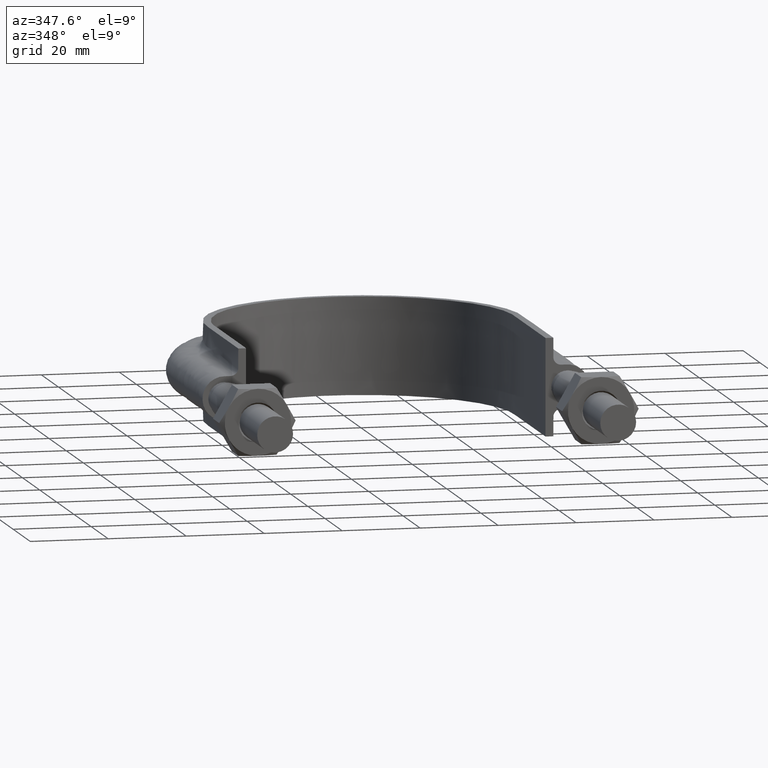
[diagram: clean part render]
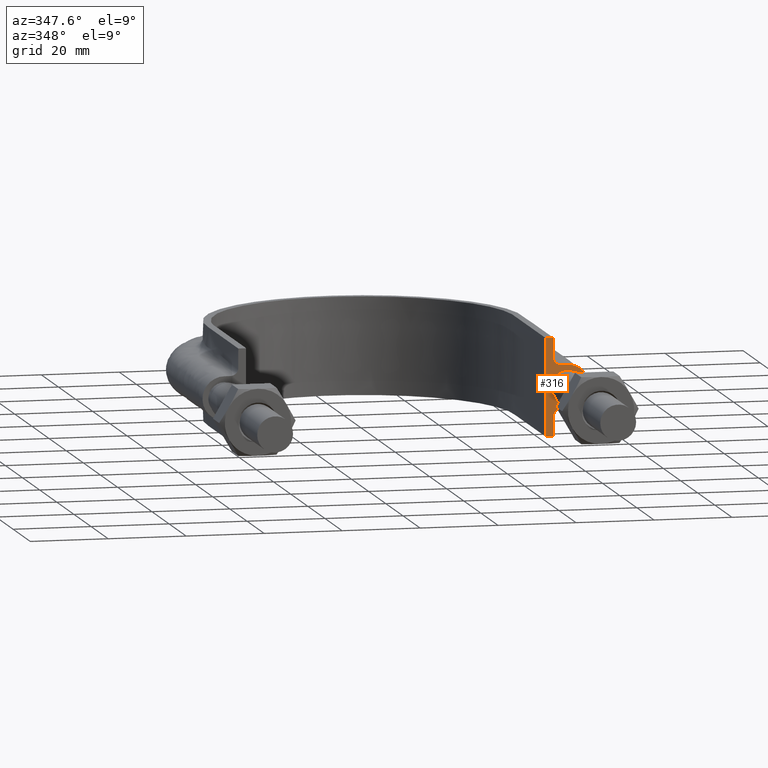
[diagram: same view with one face highlighted and labeled with its STEP entity id]
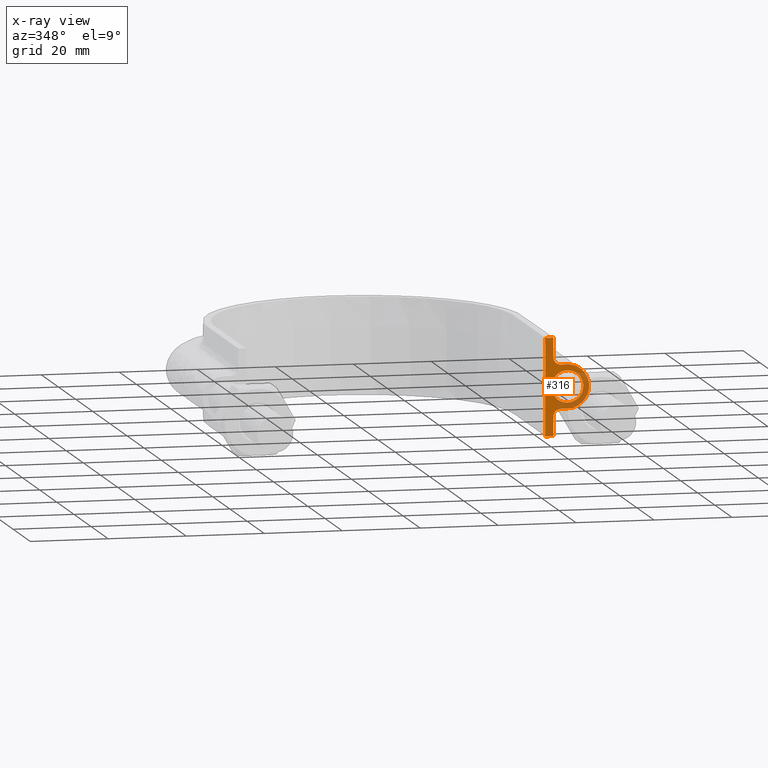
[diagram: x-ray of the same camera — body ghosted, the highlighted face saturated]
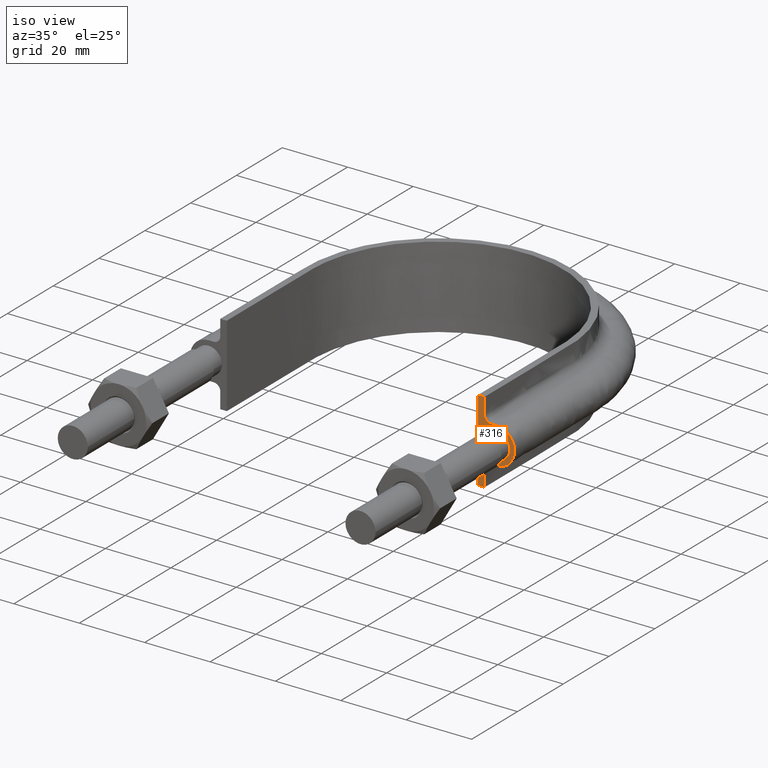
[diagram: same view with one face highlighted and labeled with its STEP entity id]
A machine part, auxiliary view. The second image highlights one B-rep face of the part: STEP entity #316.
The next image is the same camera in x-ray: the body ghosted, the highlighted face saturated — about 24% of this face is hidden behind the body in this view.
A second angle (iso view) of the same face is appended — the face is thin or edge-on in the first view.
In plain terms, the highlighted planar face has unit normal (0, 1, 0).
Its self-contained STEP definition (entity closure, byte-faithful):
#316 = ADVANCED_FACE( '', ( #397, #398 ), #399, .F. );
#397 = FACE_BOUND( '', #571, .T. );
#398 = FACE_OUTER_BOUND( '', #572, .T. );
#399 = PLANE( '', #573 );
#571 = EDGE_LOOP( '', ( #1575 ) );
#572 = EDGE_LOOP( '', ( #1576, #1577, #1578, #1579 ) );
#573 = AXIS2_PLACEMENT_3D( '', #1580, #1581, #1582 );
#1575 = ORIENTED_EDGE( '', *, *, #2116, .T. );
#1576 = ORIENTED_EDGE( '', *, *, #2117, .F. );
#1577 = ORIENTED_EDGE( '', *, *, #2118, .T. );
#1578 = ORIENTED_EDGE( '', *, *, #2119, .T. );
#1579 = ORIENTED_EDGE( '', *, *, #2120, .T. );
#1580 = CARTESIAN_POINT( '', ( -55.0000000000000, 59.3000000000000, 12.5000000000000 ) );
#1581 = DIRECTION( '', ( 1.22460635382238E-016, 1.00000000000000, 0.000000000000000 ) );
#1582 = DIRECTION( '', ( -1.00000000000000, 1.22460635382238E-016, 0.000000000000000 ) );
#2116 = EDGE_CURVE( '', #2273, #2273, #2274, .T. );
#2117 = EDGE_CURVE( '', #2275, #2276, #2277, .T. );
#2118 = EDGE_CURVE( '', #2275, #2278, #2279, .T. );
#2119 = EDGE_CURVE( '', #2278, #2280, #2281, .T. );
#2120 = EDGE_CURVE( '', #2280, #2276, #2282, .T. );
#2273 = VERTEX_POINT( '', #2565 );
#2274 = B_SPLINE_CURVE_WITH_KNOTS( '', 3, ( #2566, #2567, #2568, #2569, #2570, #2571, #2572, #2573, #2574, #2575 ), .UNSPECIFIED., .T., .F., ( 4, 1, 1, 1, 1, 1, 1, 4 ), ( 0.000000000000000, 0.00365634574703306, 0.00731269149406613, 0.0109690372410992, 0.0146253829881323, 0.0182817287351653, 0.0219380744821984, 0.0255944202292314 ), .UNSPECIFIED. );
#2275 = VERTEX_POINT( '', #2576 );
#2276 = VERTEX_POINT( '', #2577 );
#2277 = LINE( '', #2578, #2579 );
#2278 = VERTEX_POINT( '', #2580 );
#2279 = LINE( '', #2581, #2582 );
#2280 = VERTEX_POINT( '', #2583 );
#2281 = LINE( '', #2584, #2585 );
#2282 = B_SPLINE_CURVE_WITH_KNOTS( '', 3, ( #2586, #2587, #2588, #2589, #2590, #2591, #2592, #2593, #2594, #2595, #2596, #2597, #2598, #2599, #2600, #2601, #2602, #2603, #2604, #2605, #2606, #2607, #2608, #2609, #2610, #2611, #2612, #2613, #2614, #2615, #2616 ), .UNSPECIFIED., .F., .F., ( 4, 3, 1, 1, 1, 3, 3, 1, 1, 1, 3, 3, 1, 1, 1, 3, 4 ), ( 3.46944695195361E-018, 0.00229145817393288, 0.00458291634786575, 0.00687437452179862, 0.00916583269573149, 0.0114572908696644, 0.0137487490435972, 0.0160402072175301, 0.0183316653914630, 0.0206231235653959, 0.0229145817393287, 0.0252060399132616, 0.0274974980871945, 0.0297889562611273, 0.0320804144350602, 0.0343718726089931, 0.0366633307829260 ), .UNSPECIFIED. );
#2565 = CARTESIAN_POINT( '', ( 39.9000000000000, 59.3000000000000, 4.33680868994202E-016 ) );
#2566 = CARTESIAN_POINT( '', ( 39.9000000000000, 59.3000000000000, 4.33680868994202E-016 ) );
#2567 = CARTESIAN_POINT( '', ( 39.9000000000000, 59.3000000000000, 1.22184926194408 ) );
#2568 = CARTESIAN_POINT( '', ( 41.0768231851220, 59.3000000000000, 3.66554778583225 ) );
#2569 = CARTESIAN_POINT( '', ( 45.0432697263483, 59.3000000000000, 4.57086332538454 ) );
#2570 = CARTESIAN_POINT( '', ( 48.2241128848103, 59.3000000000000, 2.03422555230246 ) );
#2571 = CARTESIAN_POINT( '', ( 48.2241128848103, 59.3000000000000, -2.03422555230246 ) );
#2572 = CARTESIAN_POINT( '', ( 45.0432697263483, 59.3000000000000, -4.57086332538454 ) );
#2573 = CARTESIAN_POINT( '', ( 41.0768231851220, 59.3000000000000, -3.66554778583225 ) );
#2574 = CARTESIAN_POINT( '', ( 39.9000000000000, 59.3000000000000, -1.22184926194408 ) );
#2575 = CARTESIAN_POINT( '', ( 39.9000000000000, 59.3000000000000, 4.33680868994202E-016 ) );
#2576 = CARTESIAN_POINT( '', ( 38.4000000000000, 59.3000000000000, 12.5000000000000 ) );
#2577 = CARTESIAN_POINT( '', ( 40.4000000000000, 59.3000000000000, 12.5000000000000 ) );
#2578 = CARTESIAN_POINT( '', ( -55.0000000000000, 59.3000000000000, 12.5000000000000 ) );
#2579 = VECTOR( '', #3197, 1000.00000000000 );
#2580 = CARTESIAN_POINT( '', ( 38.4000000000000, 59.3000000000000, -12.5000000000000 ) );
#2581 = CARTESIAN_POINT( '', ( 38.4000000000000, 59.3000000000000, 12.5000100000909 ) );
#2582 = VECTOR( '', #3198, 1000.00000000000 );
#2583 = CARTESIAN_POINT( '', ( 40.4000000000000, 59.3000000000000, -12.5000000000000 ) );
#2584 = CARTESIAN_POINT( '', ( -55.0000000000000, 59.3000000000000, -12.5000000000000 ) );
#2585 = VECTOR( '', #3199, 1000.00000000000 );
#2586 = CARTESIAN_POINT( '', ( 40.4000000000000, 59.3000000000000, -12.5000000000000 ) );
#2587 = CARTESIAN_POINT( '', ( 40.4000000000000, 59.3000000000000, -10.8666666666667 ) );
#2588 = CARTESIAN_POINT( '', ( 40.4000000000000, 59.3000000000000, -9.23333333333333 ) );
#2589 = CARTESIAN_POINT( '', ( 40.4000000000000, 59.3000000000000, -7.60000000000000 ) );
#2590 = CARTESIAN_POINT( '', ( 40.4000000000000, 59.3000000000000, -7.33823584172333 ) );
#2591 = CARTESIAN_POINT( '', ( 40.5041362568359, 59.3000000000000, -6.81470752517001 ) );
#2592 = CARTESIAN_POINT( '', ( 40.9489687109389, 59.3000000000000, -6.14896871093887 ) );
#2593 = CARTESIAN_POINT( '', ( 41.6147075251700, 59.3000000000000, -5.70413625683591 ) );
#2594 = CARTESIAN_POINT( '', ( 42.1382358417233, 59.3000000000000, -5.60000000000000 ) );
#2595 = CARTESIAN_POINT( '', ( 42.4000000000000, 59.3000000000000, -5.60000000000000 ) );
#2596 = CARTESIAN_POINT( '', ( 42.9333333333333, 59.3000000000000, -5.60000000000000 ) );
#2597 = CARTESIAN_POINT( '', ( 43.4666666666667, 59.3000000000000, -5.60000000000000 ) );
#2598 = CARTESIAN_POINT( '', ( 44.0000000000000, 59.3000000000000, -5.60000000000000 ) );
#2599 = CARTESIAN_POINT( '', ( 45.4627416997970, 59.3000000000000, -5.60000000000000 ) );
#2600 = CARTESIAN_POINT( '', ( 48.3882250993909, 59.3000000000000, -4.38822509939085 ) );
#2601 = CARTESIAN_POINT( '', ( 50.2058874503046, 59.3000000000000, 2.90303803946411E-015 ) );
#2602 = CARTESIAN_POINT( '', ( 48.3882250993909, 59.3000000000000, 4.38822509939086 ) );
#2603 = CARTESIAN_POINT( '', ( 45.4627416997970, 59.3000000000000, 5.60000000000000 ) );
#2604 = CARTESIAN_POINT( '', ( 44.0000000000000, 59.3000000000000, 5.60000000000000 ) );
#2605 = CARTESIAN_POINT( '', ( 43.4666666666667, 59.3000000000000, 5.60000000000000 ) );
#2606 = CARTESIAN_POINT( '', ( 42.9333333333333, 59.3000000000000, 5.60000000000000 ) );
#2607 = CARTESIAN_POINT( '', ( 42.4000000000000, 59.3000000000000, 5.59999999999998 ) );
#2608 = CARTESIAN_POINT( '', ( 42.1382358417233, 59.3000000000000, 5.59999999999998 ) );
#2609 = CARTESIAN_POINT( '', ( 41.6147075251700, 59.3000000000000, 5.70413625683589 ) );
#2610 = CARTESIAN_POINT( '', ( 40.9489687109389, 59.3000000000000, 6.14896871093886 ) );
#2611 = CARTESIAN_POINT( '', ( 40.5041362568359, 59.3000000000000, 6.81470752516999 ) );
#2612 = CARTESIAN_POINT( '', ( 40.4000000000000, 59.3000000000000, 7.33823584172332 ) );
#2613 = CARTESIAN_POINT( '', ( 40.4000000000000, 59.3000000000000, 7.59999999999998 ) );
#2614 = CARTESIAN_POINT( '', ( 40.4000000000000, 59.3000000000000, 9.23333333333332 ) );
#2615 = CARTESIAN_POINT( '', ( 40.4000000000000, 59.3000000000000, 10.8666666666667 ) );
#2616 = CARTESIAN_POINT( '', ( 40.4000000000000, 59.3000000000000, 12.5000000000000 ) );
#3197 = DIRECTION( '', ( 1.00000000000000, -1.22460635382238E-016, 0.000000000000000 ) );
#3198 = DIRECTION( '', ( 0.000000000000000, 0.000000000000000, -1.00000000000000 ) );
#3199 = DIRECTION( '', ( 1.00000000000000, -1.22460635382238E-016, 0.000000000000000 ) );